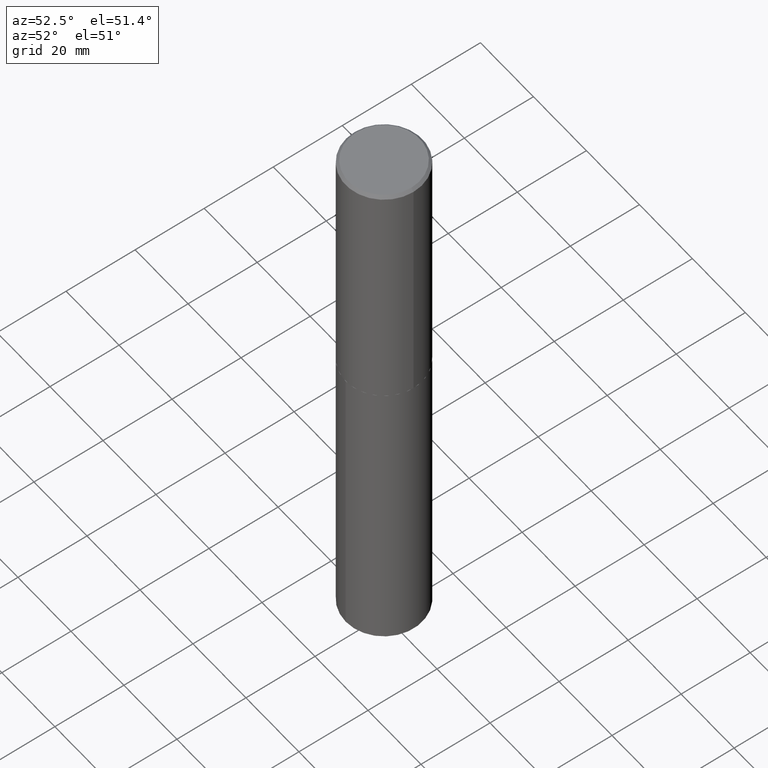
[diagram: clean part render]
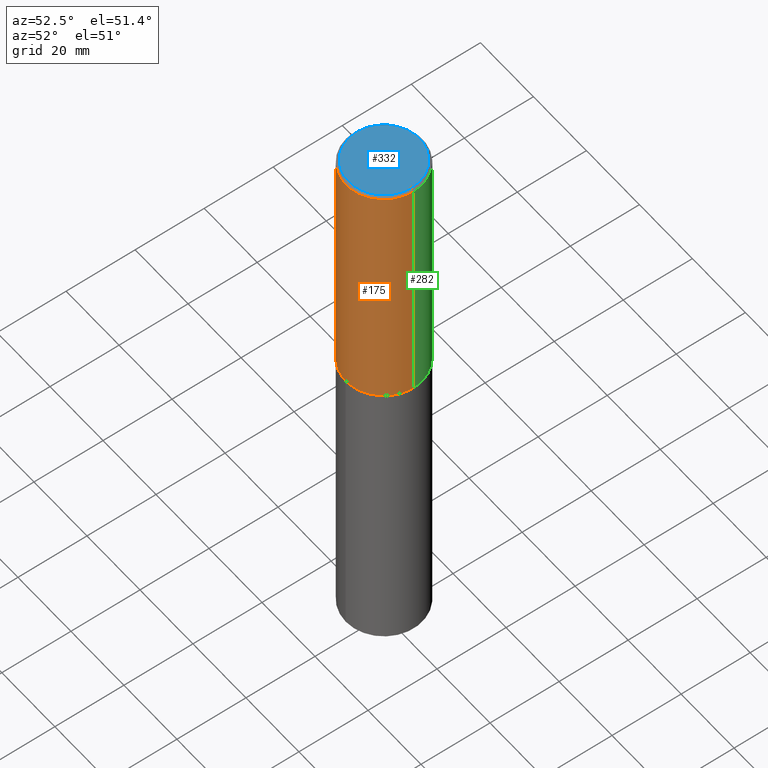
[diagram: same view with three faces highlighted in distinct colors, each labeled with its STEP entity id]
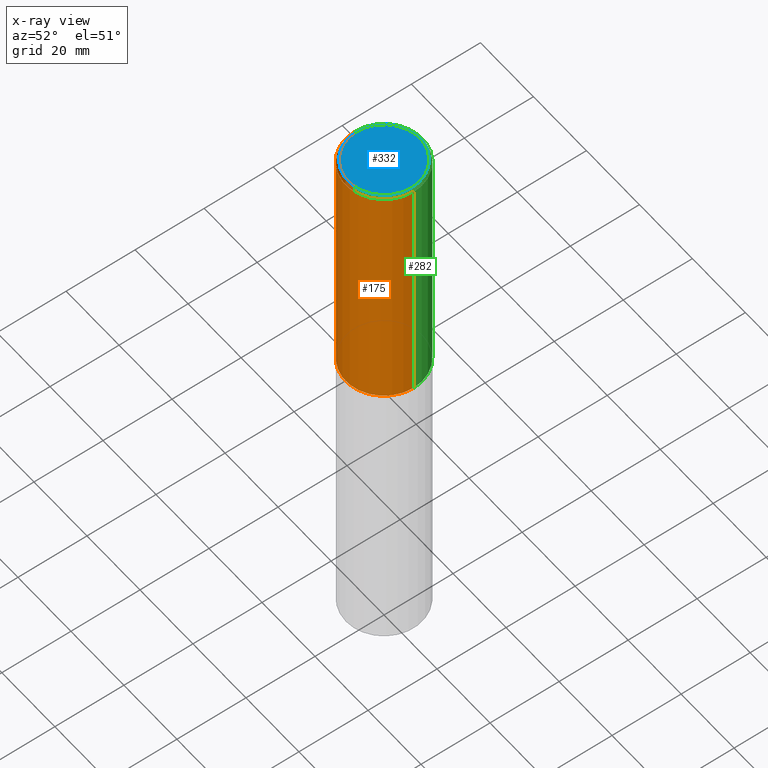
[diagram: x-ray of the same camera — body ghosted, the three highlighted faces saturated]
A machine part, auxiliary view with three faces highlighted in distinct colors.
The next image is the same camera in x-ray (body ghosted, the three faces saturated) — at least one of them is partly hidden behind the body in this view.
Their STEP definitions:

[orange] entity #175 — the highlighted cylindrical surface (partial cylindrical patch) has radius 11.1125 mm, axis along (-0, 0, 1).
#6 = AXIS2_PLACEMENT_3D ( 'NONE', #18, #255, #373 ) ;
#15 = CYLINDRICAL_SURFACE ( 'NONE', #6, 0.4375000000000001665 ) ;
#18 = CARTESIAN_POINT ( 'NONE',  ( 0.000000000000000000, 0.000000000000000000, 0.000000000000000000 ) ) ;
#23 = EDGE_CURVE ( 'NONE', #42, #377, #147, .T. ) ;
#28 = DIRECTION ( 'NONE',  ( 1.000000000000000000, -6.982962677686266711E-15, 0.000000000000000000 ) ) ;
#34 = EDGE_CURVE ( 'NONE', #377, #205, #221, .T. ) ;
#42 = VERTEX_POINT ( 'NONE', #338 ) ;
#46 = ORIENTED_EDGE ( 'NONE', *, *, #34, .T. ) ;
#48 = LINE ( 'NONE', #276, #148 ) ;
#72 = FACE_OUTER_BOUND ( 'NONE', #331, .T. ) ;
#115 = AXIS2_PLACEMENT_3D ( 'NONE', #295, #327, #28 ) ;
#130 = AXIS2_PLACEMENT_3D ( 'NONE', #357, #207, #316 ) ;
#145 = DIRECTION ( 'NONE',  ( -2.445468806185136877E-29, 3.491481338843145188E-15, 1.000000000000000000 ) ) ;
#147 = CIRCLE ( 'NONE', #115, 0.4375000000000003331 ) ;
#148 = VECTOR ( 'NONE', #145, 39.37007874015748143 ) ;
#175 = ADVANCED_FACE ( 'NONE', ( #72 ), #15, .T. ) ;
#186 = ORIENTED_EDGE ( 'NONE', *, *, #250, .F. ) ;
#192 = CARTESIAN_POINT ( 'NONE',  ( 0.4375000000000003331, -1.309130927999236566E-14, -2.874499999999999833 ) ) ;
#193 = EDGE_CURVE ( 'NONE', #42, #284, #48, .T. ) ;
#198 = CARTESIAN_POINT ( 'NONE',  ( -0.4375000000000000000, -1.964061481221295461E-15, -0.03125000000000015266 ) ) ;
#205 = VERTEX_POINT ( 'NONE', #360 ) ;
#207 = DIRECTION ( 'NONE',  ( -2.445468806185136597E-29, 3.491481338843145583E-15, 1.000000000000000000 ) ) ;
#210 = CIRCLE ( 'NONE', #130, 0.4375000000000000000 ) ;
#221 = LINE ( 'NONE', #333, #234 ) ;
#225 = DIRECTION ( 'NONE',  ( -2.445468806185136877E-29, 3.491481338843145188E-15, 1.000000000000000000 ) ) ;
#234 = VECTOR ( 'NONE', #225, 39.37007874015748143 ) ;
#250 = EDGE_CURVE ( 'NONE', #284, #205, #210, .T. ) ;
#255 = DIRECTION ( 'NONE',  ( -2.445468806185136597E-29, 3.491481338843145583E-15, 1.000000000000000000 ) ) ;
#268 = ORIENTED_EDGE ( 'NONE', *, *, #23, .T. ) ;
#276 = CARTESIAN_POINT ( 'NONE',  ( -0.4375000000000001665, 3.108624468950439496E-15, -2.152034101986522085E-29 ) ) ;
#284 = VERTEX_POINT ( 'NONE', #198 ) ;
#295 = CARTESIAN_POINT ( 'NONE',  ( 7.029500083379174914E-29, -1.003626310850462081E-14, -2.874499999999999833 ) ) ;
#316 = DIRECTION ( 'NONE',  ( 1.000000000000000000, -6.982962677686266711E-15, 0.000000000000000000 ) ) ;
#327 = DIRECTION ( 'NONE',  ( -2.445468806185136597E-29, 3.491481338843145583E-15, 1.000000000000000000 ) ) ;
#331 = EDGE_LOOP ( 'NONE', ( #374, #268, #46, #186 ) ) ;
#333 = CARTESIAN_POINT ( 'NONE',  ( 0.4375000000000001665, -3.055046171487742869E-15, 2.133327339410722610E-29 ) ) ;
#338 = CARTESIAN_POINT ( 'NONE',  ( -0.4375000000000003331, -6.927638639554180923E-15, -2.874499999999999833 ) ) ;
#357 = CARTESIAN_POINT ( 'NONE',  ( 7.642090019328589525E-31, -1.091087918388488295E-16, -0.03125000000000015266 ) ) ;
#360 = CARTESIAN_POINT ( 'NONE',  ( 0.4375000000000000000, -3.164154963326590392E-15, -0.03125000000000015266 ) ) ;
#373 = DIRECTION ( 'NONE',  ( 1.000000000000000000, -6.982962677686266711E-15, 4.876176775795935793E-29 ) ) ;
#374 = ORIENTED_EDGE ( 'NONE', *, *, #193, .F. ) ;
#377 = VERTEX_POINT ( 'NONE', #192 ) ;

[blue] entity #332 — the highlighted planar face has unit normal (0, -0, -1).
#21 = EDGE_LOOP ( 'NONE', ( #256, #101 ) ) ;
#36 = DIRECTION ( 'NONE',  ( -2.445468806185136597E-29, 3.491481338843145583E-15, 1.000000000000000000 ) ) ;
#63 = DIRECTION ( 'NONE',  ( -2.445468806185136597E-29, 3.491481338843145583E-15, 1.000000000000000000 ) ) ;
#75 = EDGE_CURVE ( 'NONE', #325, #149, #129, .T. ) ;
#87 = AXIS2_PLACEMENT_3D ( 'NONE', #248, #36, #94 ) ;
#94 = DIRECTION ( 'NONE',  ( 1.000000000000000000, -6.982962677686266711E-15, 4.876067333457690037E-29 ) ) ;
#101 = ORIENTED_EDGE ( 'NONE', *, *, #75, .T. ) ;
#125 = CARTESIAN_POINT ( 'NONE',  ( -1.871772216193324936E-46, 2.672394653685602413E-32, 7.654042494670940597E-18 ) ) ;
#126 = EDGE_CURVE ( 'NONE', #149, #325, #135, .T. ) ;
#129 = CIRCLE ( 'NONE', #87, 0.4062500000000000000 ) ;
#135 = CIRCLE ( 'NONE', #154, 0.4062500000000000000 ) ;
#137 = DIRECTION ( 'NONE',  ( 2.438088387897960049E-29, -3.491481338843145188E-15, -1.000000000000000000 ) ) ;
#149 = VERTEX_POINT ( 'NONE', #199 ) ;
#154 = AXIS2_PLACEMENT_3D ( 'NONE', #125, #63, #189 ) ;
#168 = CARTESIAN_POINT ( 'NONE',  ( -9.358861080966624678E-47, 1.336197326842801207E-32, 3.827021247335470298E-18 ) ) ;
#189 = DIRECTION ( 'NONE',  ( 1.000000000000000000, -6.982962677686266711E-15, 4.876067333457690037E-29 ) ) ;
#199 = CARTESIAN_POINT ( 'NONE',  ( -0.4062500000000000000, 2.891382983729469218E-15, 7.654042494650910925E-18 ) ) ;
#226 = CARTESIAN_POINT ( 'NONE',  ( 0.4062500000000000000, -2.948826988729289034E-15, 7.654042494691170565E-18 ) ) ;
#248 = CARTESIAN_POINT ( 'NONE',  ( -1.871772216193324936E-46, 2.672394653685602413E-32, 7.654042494670940597E-18 ) ) ;
#256 = ORIENTED_EDGE ( 'NONE', *, *, #126, .T. ) ;
#301 = PLANE ( 'NONE',  #389 ) ;
#325 = VERTEX_POINT ( 'NONE', #226 ) ;
#332 = ADVANCED_FACE ( 'NONE', ( #344 ), #301, .F. ) ;
#344 = FACE_OUTER_BOUND ( 'NONE', #21, .T. ) ;
#367 = DIRECTION ( 'NONE',  ( -1.000000000000000000, 6.982962677686265922E-15, -4.876176775795935793E-29 ) ) ;
#389 = AXIS2_PLACEMENT_3D ( 'NONE', #168, #137, #367 ) ;

[green] entity #282 — the highlighted cylindrical surface (partial cylindrical patch) has radius 11.1125 mm, axis along (-0, 0, 1).
#19 = FACE_OUTER_BOUND ( 'NONE', #60, .T. ) ;
#20 = DIRECTION ( 'NONE',  ( 1.000000000000000000, -6.982962677686266711E-15, 0.000000000000000000 ) ) ;
#25 = AXIS2_PLACEMENT_3D ( 'NONE', #326, #359, #20 ) ;
#26 = EDGE_CURVE ( 'NONE', #377, #42, #216, .T. ) ;
#34 = EDGE_CURVE ( 'NONE', #377, #205, #221, .T. ) ;
#42 = VERTEX_POINT ( 'NONE', #338 ) ;
#48 = LINE ( 'NONE', #276, #148 ) ;
#50 = ORIENTED_EDGE ( 'NONE', *, *, #193, .T. ) ;
#57 = CARTESIAN_POINT ( 'NONE',  ( 7.029500083379174914E-29, -1.003626310850462081E-14, -2.874499999999999833 ) ) ;
#58 = AXIS2_PLACEMENT_3D ( 'NONE', #335, #215, #366 ) ;
#60 = EDGE_LOOP ( 'NONE', ( #109, #50, #112, #238 ) ) ;
#89 = DIRECTION ( 'NONE',  ( 1.000000000000000000, -6.982962677686266711E-15, 0.000000000000000000 ) ) ;
#109 = ORIENTED_EDGE ( 'NONE', *, *, #26, .T. ) ;
#112 = ORIENTED_EDGE ( 'NONE', *, *, #213, .F. ) ;
#122 = AXIS2_PLACEMENT_3D ( 'NONE', #57, #153, #89 ) ;
#145 = DIRECTION ( 'NONE',  ( -2.445468806185136877E-29, 3.491481338843145188E-15, 1.000000000000000000 ) ) ;
#148 = VECTOR ( 'NONE', #145, 39.37007874015748143 ) ;
#153 = DIRECTION ( 'NONE',  ( -2.445468806185136597E-29, 3.491481338843145583E-15, 1.000000000000000000 ) ) ;
#177 = CIRCLE ( 'NONE', #25, 0.4375000000000000000 ) ;
#192 = CARTESIAN_POINT ( 'NONE',  ( 0.4375000000000003331, -1.309130927999236566E-14, -2.874499999999999833 ) ) ;
#193 = EDGE_CURVE ( 'NONE', #42, #284, #48, .T. ) ;
#198 = CARTESIAN_POINT ( 'NONE',  ( -0.4375000000000000000, -1.964061481221295461E-15, -0.03125000000000015266 ) ) ;
#205 = VERTEX_POINT ( 'NONE', #360 ) ;
#213 = EDGE_CURVE ( 'NONE', #205, #284, #177, .T. ) ;
#215 = DIRECTION ( 'NONE',  ( -2.445468806185136597E-29, 3.491481338843145583E-15, 1.000000000000000000 ) ) ;
#216 = CIRCLE ( 'NONE', #122, 0.4375000000000003331 ) ;
#221 = LINE ( 'NONE', #333, #234 ) ;
#225 = DIRECTION ( 'NONE',  ( -2.445468806185136877E-29, 3.491481338843145188E-15, 1.000000000000000000 ) ) ;
#234 = VECTOR ( 'NONE', #225, 39.37007874015748143 ) ;
#238 = ORIENTED_EDGE ( 'NONE', *, *, #34, .F. ) ;
#276 = CARTESIAN_POINT ( 'NONE',  ( -0.4375000000000001665, 3.108624468950439496E-15, -2.152034101986522085E-29 ) ) ;
#282 = ADVANCED_FACE ( 'NONE', ( #19 ), #380, .T. ) ;
#284 = VERTEX_POINT ( 'NONE', #198 ) ;
#326 = CARTESIAN_POINT ( 'NONE',  ( 7.642090019328589525E-31, -1.091087918388488295E-16, -0.03125000000000015266 ) ) ;
#333 = CARTESIAN_POINT ( 'NONE',  ( 0.4375000000000001665, -3.055046171487742869E-15, 2.133327339410722610E-29 ) ) ;
#335 = CARTESIAN_POINT ( 'NONE',  ( 0.000000000000000000, 0.000000000000000000, 0.000000000000000000 ) ) ;
#338 = CARTESIAN_POINT ( 'NONE',  ( -0.4375000000000003331, -6.927638639554180923E-15, -2.874499999999999833 ) ) ;
#359 = DIRECTION ( 'NONE',  ( -2.445468806185136597E-29, 3.491481338843145583E-15, 1.000000000000000000 ) ) ;
#360 = CARTESIAN_POINT ( 'NONE',  ( 0.4375000000000000000, -3.164154963326590392E-15, -0.03125000000000015266 ) ) ;
#366 = DIRECTION ( 'NONE',  ( 1.000000000000000000, -6.982962677686266711E-15, 4.876176775795935793E-29 ) ) ;
#377 = VERTEX_POINT ( 'NONE', #192 ) ;
#380 = CYLINDRICAL_SURFACE ( 'NONE', #58, 0.4375000000000001665 ) ;